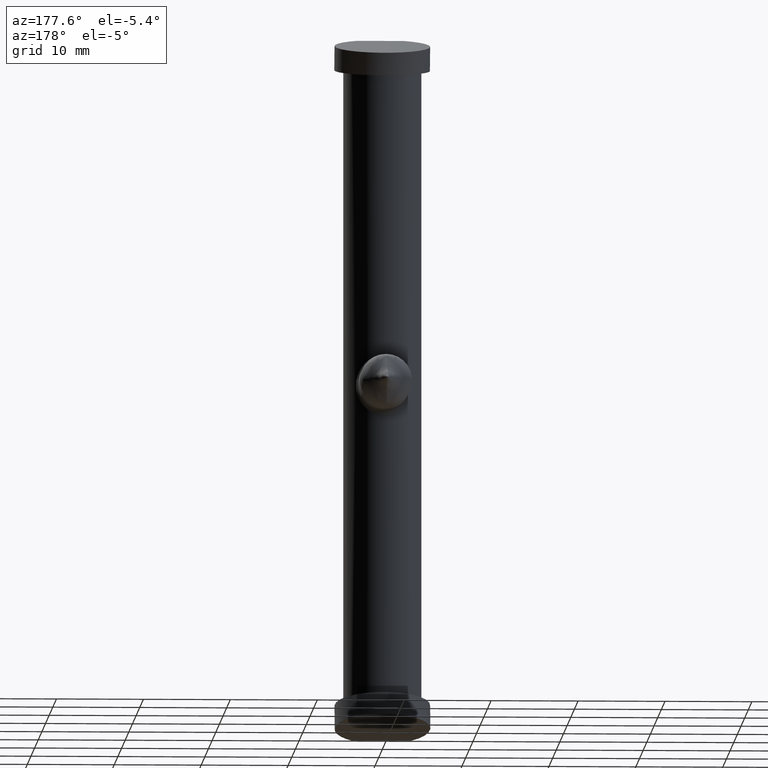
[diagram: clean part render]
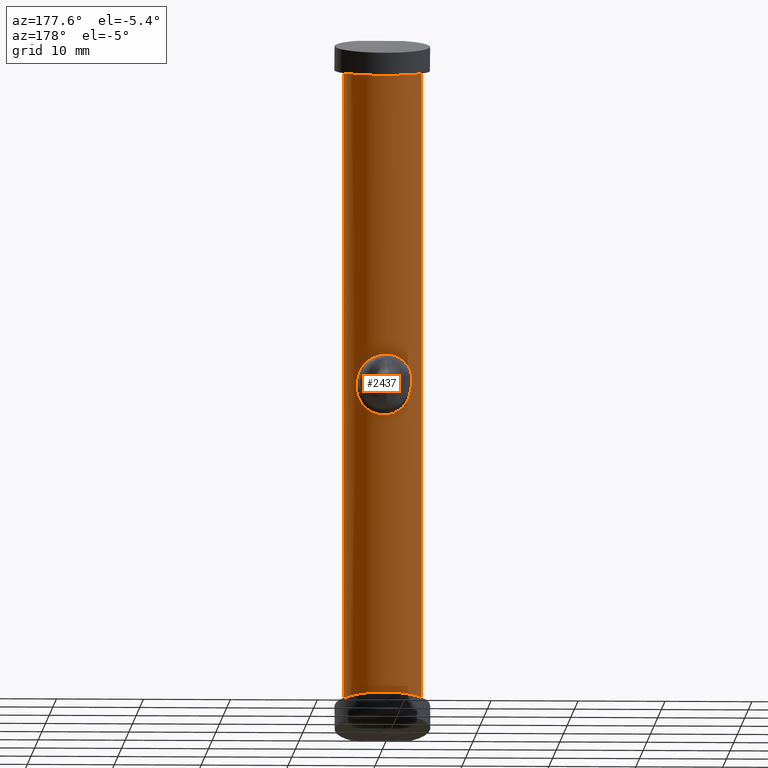
[diagram: same view with one face highlighted and labeled with its STEP entity id]
A machine part, auxiliary view. The second image highlights one B-rep face of the part: STEP entity #2437.
In plain terms, the highlighted cylindrical surface (partial cylindrical patch) has radius 4.5 mm, axis along (-0, -0, -1).
Its self-contained STEP definition (entity closure, byte-faithful):
#9 = DIRECTION ( 'NONE',  ( -0.0000000000000000000, -0.0000000000000000000, -1.000000000000000000 ) ) ;
#10 = VECTOR ( 'NONE', #9, 1000.000000000000000 ) ;
#11 = CARTESIAN_POINT ( 'NONE',  ( 4.500000000000000000, 5.510728592200697700E-016, 37.50000000000000000 ) ) ;
#12 = LINE ( 'NONE', #11, #10 ) ;
#13 = CARTESIAN_POINT ( 'NONE',  ( 4.500000000000000000, 5.510728592200697700E-016, 36.60888706871550400 ) ) ;
#14 = CARTESIAN_POINT ( 'NONE',  ( 4.499999999999999100, 8.999999999999998200, 34.85946428647611800 ) ) ;
#15 = CARTESIAN_POINT ( 'NONE',  ( -4.500000000000001800, 8.999999999999998200, 34.85946428647611800 ) ) ;
#46 = CARTESIAN_POINT ( 'NONE',  ( -4.500000000000000000, 0.0000000000000000000, 36.60888706871550400 ) ) ;
#47 = CARTESIAN_POINT ( 'NONE',  ( -4.500000000000000000, 0.0000000000000000000, 36.60888706871550400 ) ) ;
#48 =( BOUNDED_CURVE ( )  B_SPLINE_CURVE ( 3, ( #46, #15, #14, #13 ),
 .UNSPECIFIED., .F., .T. ) 
 B_SPLINE_CURVE_WITH_KNOTS ( ( 4, 4 ),
 ( 4.712388980384689700, 7.853981633974482800 ),
 .UNSPECIFIED. ) 
 CURVE ( )  GEOMETRIC_REPRESENTATION_ITEM ( )  RATIONAL_B_SPLINE_CURVE ( ( 1.000000000000000000, 0.3333333333333333700, 0.3333333333333333700, 1.000000000000000000 ) ) 
 REPRESENTATION_ITEM ( '' )  );
#49 = CARTESIAN_POINT ( 'NONE',  ( 4.500000000000000000, 5.510728592200697700E-016, 36.60888706871550400 ) ) ;
#205 = DIRECTION ( 'NONE',  ( -0.0000000000000000000, -0.0000000000000000000, -1.000000000000000000 ) ) ;
#206 = VECTOR ( 'NONE', #205, 1000.000000000000000 ) ;
#207 = CARTESIAN_POINT ( 'NONE',  ( -4.500000000000000000, 0.0000000000000000000, 37.50000000000000000 ) ) ;
#209 = CARTESIAN_POINT ( 'NONE',  ( -0.2561864383574117800, 4.492701693725250900, 3.488405576715023000 ) ) ;
#210 = CARTESIAN_POINT ( 'NONE',  ( -0.03182133669108955900, 4.505495620454878400, 3.508747848455409100 ) ) ;
#211 = CARTESIAN_POINT ( 'NONE',  ( 0.1985727250341694500, 4.501156987975556400, 3.501917684612449100 ) ) ;
#212 = CARTESIAN_POINT ( 'NONE',  ( 0.6431371391452582700, 4.459396817707607300, 3.435325203920256000 ) ) ;
#213 = CARTESIAN_POINT ( 'NONE',  ( 0.8572020828906855600, 4.422712726476195400, 3.376727531964279100 ) ) ;
#214 = CARTESIAN_POINT ( 'NONE',  ( 1.476819999584821000, 4.271970947491667800, 3.129726080760848000 ) ) ;
#215 = CARTESIAN_POINT ( 'NONE',  ( 1.826677659195023100, 4.126437210061116200, 2.886453867725626000 ) ) ;
#216 = CARTESIAN_POINT ( 'NONE',  ( 2.273593637547903300, 3.887072265998730000, 2.432797255733893900 ) ) ;
#217 = CARTESIAN_POINT ( 'NONE',  ( 2.405838619107695500, 3.805538433209315800, 2.269785934616214400 ) ) ;
#218 = CARTESIAN_POINT ( 'NONE',  ( 2.641088871974955700, 3.646207865461498900, 1.919931475305980400 ) ) ;
#219 = CARTESIAN_POINT ( 'NONE',  ( 2.744479718501608100, 3.567927579922757400, 1.731647784887247100 ) ) ;
#220 = CARTESIAN_POINT ( 'NONE',  ( 2.916744758565537500, 3.428538486617966000, 1.339632444468163500 ) ) ;
#221 = CARTESIAN_POINT ( 'NONE',  ( 2.986526480169426900, 3.366864464508421600, 1.134993845478576400 ) ) ;
#222 = CARTESIAN_POINT ( 'NONE',  ( 3.092028995684459300, 3.270240576619603900, 0.7046127036276265100 ) ) ;
#223 = CARTESIAN_POINT ( 'NONE',  ( 3.126471135819262500, 3.236605302345891400, 0.4826775216908127400 ) ) ;
#224 = CARTESIAN_POINT ( 'NONE',  ( 3.156360363378750000, 3.207463936317305200, 0.03375414850554117600 ) ) ;
#225 = CARTESIAN_POINT ( 'NONE',  ( 3.151529901911753300, 3.212317904831368600, -0.1959373174460805600 ) ) ;
#226 = CARTESIAN_POINT ( 'NONE',  ( 3.103251884861462500, 3.258980635635610100, -0.6412425457085929600 ) ) ;
#227 = CARTESIAN_POINT ( 'NONE',  ( 3.059426774420439100, 3.300995444479497100, -0.8620140579369268700 ) ) ;
#228 = CARTESIAN_POINT ( 'NONE',  ( 2.937696445516406300, 3.409780448432906400, -1.282319009088487500 ) ) ;
#229 = CARTESIAN_POINT ( 'NONE',  ( 2.860498543715249000, 3.475844586109339200, -1.481597218308299700 ) ) ;
#230 = CARTESIAN_POINT ( 'NONE',  ( 2.674243866951120800, 3.621100281055051400, -1.862206051270106900 ) ) ;
#231 = CARTESIAN_POINT ( 'NONE',  ( 2.563968527409390400, 3.701098732496502100, -2.045013047821067500 ) ) ;
#232 = CARTESIAN_POINT ( 'NONE',  ( 2.314301593892392100, 3.862133422053184000, -2.384472977544235900 ) ) ;
#233 = CARTESIAN_POINT ( 'NONE',  ( 2.175302836756332100, 3.943120832861795500, -2.541371860094608700 ) ) ;
#234 = CARTESIAN_POINT ( 'NONE',  ( 1.865017481840490800, 4.099006480426470300, -2.829538783331813100 ) ) ;
#235 = CARTESIAN_POINT ( 'NONE',  ( 1.693458801033019200, 4.173764760886163200, -2.960356833691544200 ) ) ;
#236 = CARTESIAN_POINT ( 'NONE',  ( 1.325622163981159800, 4.304746318701397500, -3.183509939102143100 ) ) ;
#237 = CARTESIAN_POINT ( 'NONE',  ( 1.125048284282625900, 4.362343387275149800, -3.278190939031330400 ) ) ;
#238 = CARTESIAN_POINT ( 'NONE',  ( 0.7061038581004740500, 4.449403422038302300, -3.419595855131088800 ) ) ;
#239 = CARTESIAN_POINT ( 'NONE',  ( 0.4886346612734663900, 4.479146456946271100, -3.466851148153784500 ) ) ;
#279 = CARTESIAN_POINT ( 'NONE',  ( -4.500000000000000000, 0.0000000000000000000, -36.60888706871550400 ) ) ;
#280 = CARTESIAN_POINT ( 'NONE',  ( -4.499999999999997300, 8.999999999999998200, -34.85946428647611800 ) ) ;
#281 = CARTESIAN_POINT ( 'NONE',  ( 4.499999999999997300, 8.999999999999998200, -34.85946428647611800 ) ) ;
#282 = CARTESIAN_POINT ( 'NONE',  ( 4.500000000000000000, 5.510728592200697700E-016, -36.60888706871550400 ) ) ;
#310 = CARTESIAN_POINT ( 'NONE',  ( 0.2620466658747805400, 4.492363692412259200, -3.487868135338691100 ) ) ;
#311 = LINE ( 'NONE', #207, #206 ) ;
#312 = B_SPLINE_CURVE_WITH_KNOTS ( 'NONE', 3,
 ( #310, #239, #238, #237, #236, #235, #234, #233, #232, #231, #230, #229, #228, #227, #226, #225, #224, #223, #222, #221, #220, #219, #218, #217, #216, #215, #214, #213, #212, #211, #210, #209 ),
 .UNSPECIFIED., .F., .F.,
 ( 4, 2, 2, 2, 2, 2, 2, 2, 2, 2, 2, 2, 2, 2, 2, 4 ),
 ( 0.0002624384697978247000, 0.0009452560638085541500, 0.001628073657819283300, 0.002310891251830012400, 0.002993708845840741500, 0.003676526439851470600, 0.004359344033862200600, 0.005042161627872930600, 0.005724979221883659700, 0.006407796815894388800, 0.007090614409905118000, 0.007773432003915847900, 0.008456249597926577100, 0.009821884785948035300, 0.01050470237995876400, 0.01118751997396949400 ),
 .UNSPECIFIED. ) ;
#325 =( BOUNDED_CURVE ( )  B_SPLINE_CURVE ( 3, ( #282, #281, #280, #279 ),
 .UNSPECIFIED., .F., .T. ) 
 B_SPLINE_CURVE_WITH_KNOTS ( ( 4, 4 ),
 ( 1.570796326794896800, 4.712388980384689700 ),
 .UNSPECIFIED. ) 
 CURVE ( )  GEOMETRIC_REPRESENTATION_ITEM ( )  RATIONAL_B_SPLINE_CURVE ( ( 1.000000000000000000, 0.3333333333333333700, 0.3333333333333333700, 1.000000000000000000 ) ) 
 REPRESENTATION_ITEM ( '' )  );
#326 = CARTESIAN_POINT ( 'NONE',  ( -4.500000000000000000, 0.0000000000000000000, -36.60888706871550400 ) ) ;
#327 = CARTESIAN_POINT ( 'NONE',  ( 4.500000000000000000, 5.510728592200697700E-016, -36.60888706871550400 ) ) ;
#1464 = DIRECTION ( 'NONE',  ( -1.000000000000000000, 0.0000000000000000000, 0.0000000000000000000 ) ) ;
#1465 = DIRECTION ( 'NONE',  ( -0.0000000000000000000, -0.0000000000000000000, -1.000000000000000000 ) ) ;
#1593 = CARTESIAN_POINT ( 'NONE',  ( 0.0000000000000000000, 0.0000000000000000000, 37.50000000000000000 ) ) ;
#1594 = AXIS2_PLACEMENT_3D ( 'NONE', #1593, #1465, #1464 ) ;
#1602 = FACE_OUTER_BOUND ( 'NONE', #2301, .T. ) ;
#1603 = FACE_BOUND ( 'NONE', #2258, .T. ) ;
#1646 = CYLINDRICAL_SURFACE ( 'NONE', #1594, 4.500000000000000000 ) ;
#2212 = VERTEX_POINT ( 'NONE', #3070 ) ;
#2214 = VERTEX_POINT ( 'NONE', #3069 ) ;
#2217 = EDGE_CURVE ( 'NONE', #2212, #2214, #3062, .T. ) ;
#2253 = EDGE_CURVE ( 'NONE', #2254, #2255, #48, .T. ) ;
#2254 = VERTEX_POINT ( 'NONE', #47 ) ;
#2255 = VERTEX_POINT ( 'NONE', #49 ) ;
#2256 = ORIENTED_EDGE ( 'NONE', *, *, #2257, .T. ) ;
#2257 = EDGE_CURVE ( 'NONE', #2255, #2310, #12, .T. ) ;
#2258 = EDGE_LOOP ( 'NONE', ( #2436, #2314 ) ) ;
#2300 = EDGE_CURVE ( 'NONE', #2214, #2212, #312, .T. ) ;
#2301 = EDGE_LOOP ( 'NONE', ( #2315, #2256, #2311, #2302 ) ) ;
#2302 = ORIENTED_EDGE ( 'NONE', *, *, #2303, .F. ) ;
#2303 = EDGE_CURVE ( 'NONE', #2254, #2313, #311, .T. ) ;
#2310 = VERTEX_POINT ( 'NONE', #327 ) ;
#2311 = ORIENTED_EDGE ( 'NONE', *, *, #2312, .T. ) ;
#2312 = EDGE_CURVE ( 'NONE', #2310, #2313, #325, .T. ) ;
#2313 = VERTEX_POINT ( 'NONE', #326 ) ;
#2314 = ORIENTED_EDGE ( 'NONE', *, *, #2217, .T. ) ;
#2315 = ORIENTED_EDGE ( 'NONE', *, *, #2253, .T. ) ;
#2436 = ORIENTED_EDGE ( 'NONE', *, *, #2300, .T. ) ;
#2437 = ADVANCED_FACE ( 'NONE', ( #1603, #1602 ), #1646, .T. ) ;
#3036 = CARTESIAN_POINT ( 'NONE',  ( -2.272723396458095300, 3.887509600922603800, -2.433602895840380100 ) ) ;
#3037 = CARTESIAN_POINT ( 'NONE',  ( -2.406969621225548900, 3.804827993821112500, -2.268337667228662800 ) ) ;
#3038 = CARTESIAN_POINT ( 'NONE',  ( -2.642381163597750300, 3.645276478723014500, -1.917773503132497200 ) ) ;
#3039 = CARTESIAN_POINT ( 'NONE',  ( -2.743916876780355500, 3.568363174505704300, -1.732753686430008200 ) ) ;
#3040 = CARTESIAN_POINT ( 'NONE',  ( -2.916337534780012200, 3.428887713979816200, -1.340733092982580000 ) ) ;
#3041 = CARTESIAN_POINT ( 'NONE',  ( -2.987362009159054500, 3.366113117968095600, -1.132073306666770300 ) ) ;
#3042 = CARTESIAN_POINT ( 'NONE',  ( -3.092153038562190500, 3.270112977075001000, -0.7036143347103956900 ) ) ;
#3043 = CARTESIAN_POINT ( 'NONE',  ( -3.126869883631768300, 3.236218494216611700, -0.4795922042961545100 ) ) ;
#3044 = CARTESIAN_POINT ( 'NONE',  ( -3.156403947773353600, 3.207419450267423100, -0.03015229667306150800 ) ) ;
#3045 = CARTESIAN_POINT ( 'NONE',  ( -3.151685169511590200, 3.212166543658383500, 0.1940594116430530100 ) ) ;
#3046 = CARTESIAN_POINT ( 'NONE',  ( -3.103274385349617000, 3.258960171764992100, 0.6414791276711118200 ) ) ;
#3047 = CARTESIAN_POINT ( 'NONE',  ( -3.059527546589599500, 3.300898057682001500, 0.8614981302151073500 ) ) ;
#3048 = CARTESIAN_POINT ( 'NONE',  ( -2.938045123551072300, 3.409476154415389100, 1.281282475429813100 ) ) ;
#3049 = CARTESIAN_POINT ( 'NONE',  ( -2.859103368604936500, 3.477028753760907700, 1.485132090609642100 ) ) ;
#3050 = CARTESIAN_POINT ( 'NONE',  ( -2.671069239588495000, 3.623477631250450000, 1.867992658736162800 ) ) ;
#3051 = CARTESIAN_POINT ( 'NONE',  ( -2.562134230071541300, 3.702366398309886900, 2.047821003724708400 ) ) ;
#3052 = CARTESIAN_POINT ( 'NONE',  ( -2.312489757768432200, 3.863216261155270300, 2.386617869455167600 ) ) ;
#3053 = CARTESIAN_POINT ( 'NONE',  ( -2.170729402690732400, 3.945634530297088100, 2.546160101041985900 ) ) ;
#3054 = CARTESIAN_POINT ( 'NONE',  ( -1.860506979089935800, 4.101050081032467700, 2.833170853985176800 ) ) ;
#3055 = CARTESIAN_POINT ( 'NONE',  ( -1.691271230056023800, 4.174775566477638500, 2.962138627116126500 ) ) ;
#3056 = CARTESIAN_POINT ( 'NONE',  ( -1.318328407506512500, 4.307105711964270600, 3.187468408566144000 ) ) ;
#3057 = CARTESIAN_POINT ( 'NONE',  ( -1.121418721678948000, 4.363234216373056600, 3.279648231980176300 ) ) ;
#3058 = CARTESIAN_POINT ( 'NONE',  ( -0.7041654003505769500, 4.449667837626732200, 3.420014797448498000 ) ) ;
#3059 = CARTESIAN_POINT ( 'NONE',  ( -0.4803916278104710100, 4.479916885638071600, 3.468077803564982200 ) ) ;
#3060 = CARTESIAN_POINT ( 'NONE',  ( -0.2561864383574117800, 4.492701693725250900, 3.488405576715023000 ) ) ;
#3062 = B_SPLINE_CURVE_WITH_KNOTS ( 'NONE', 3,
 ( #3060, #3059, #3058, #3057, #3056, #3055, #3054, #3053, #3052, #3051, #3050, #3049, #3048, #3047, #3046, #3045, #3044, #3043, #3042, #3041, #3040, #3039, #3038, #3037, #3036, #3093, #3092, #3091, #3090, #3089, #3088, #3087, #3086, #3085 ),
 .UNSPECIFIED., .F., .F.,
 ( 4, 2, 2, 2, 2, 2, 2, 2, 2, 2, 2, 2, 2, 2, 2, 2, 4 ),
 ( 0.01118751997396949400, 0.01186985090195283100, 0.01255218182993617100, 0.01323451275791950900, 0.01391684368590284700, 0.01459917461388618600, 0.01528150554186952600, 0.01596383646985286400, 0.01664616739783620100, 0.01732849832581954300, 0.01801082925380288100, 0.01869316018178621800, 0.01937549110976955600, 0.02005782203775289400, 0.02074015296573623200, 0.02142248389371957300, 0.02210481482170291100 ),
 .UNSPECIFIED. ) ;
#3069 = CARTESIAN_POINT ( 'NONE',  ( 0.2620466658747805400, 4.492363692412259200, -3.487868135338691100 ) ) ;
#3070 = CARTESIAN_POINT ( 'NONE',  ( -0.2561864383574117800, 4.492701693725250900, 3.488405576715023000 ) ) ;
#3085 = CARTESIAN_POINT ( 'NONE',  ( 0.2620466658747805400, 4.492363692412259200, -3.487868135338691100 ) ) ;
#3086 = CARTESIAN_POINT ( 'NONE',  ( 0.03562016701710698400, 4.505571507530072000, -3.508870143041886700 ) ) ;
#3087 = CARTESIAN_POINT ( 'NONE',  ( -0.1936767212979747200, 4.501387502536003300, -3.502281937321115400 ) ) ;
#3088 = CARTESIAN_POINT ( 'NONE',  ( -0.6389728166067103500, 4.460012764555470400, -3.436310685748951600 ) ) ;
#3089 = CARTESIAN_POINT ( 'NONE',  ( -0.8582999409503905300, 4.422359820858676300, -3.376140064737914900 ) ) ;
#3090 = CARTESIAN_POINT ( 'NONE',  ( -1.265718938399945600, 4.323413089534281700, -3.214026927672517500 ) ) ;
#3091 = CARTESIAN_POINT ( 'NONE',  ( -1.458264835433253700, 4.261495399468736300, -3.111072173932122100 ) ) ;
#3092 = CARTESIAN_POINT ( 'NONE',  ( -1.816025095835820600, 4.121763241775159500, -2.869247963457404600 ) ) ;
#3093 = CARTESIAN_POINT ( 'NONE',  ( -1.977719392343381600, 4.045569000674980500, -2.733211450809548600 ) ) ;